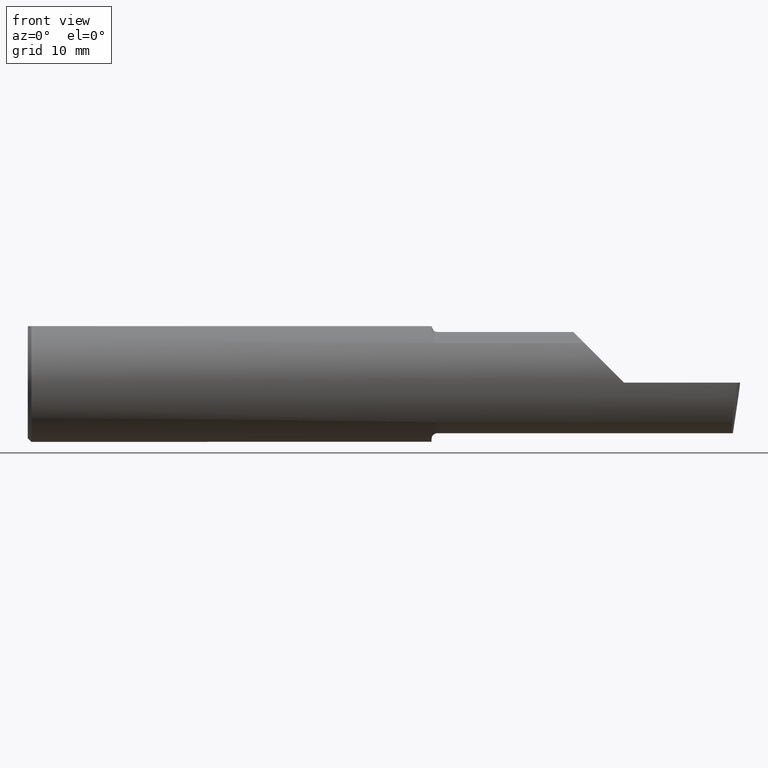
[diagram: clean part render]
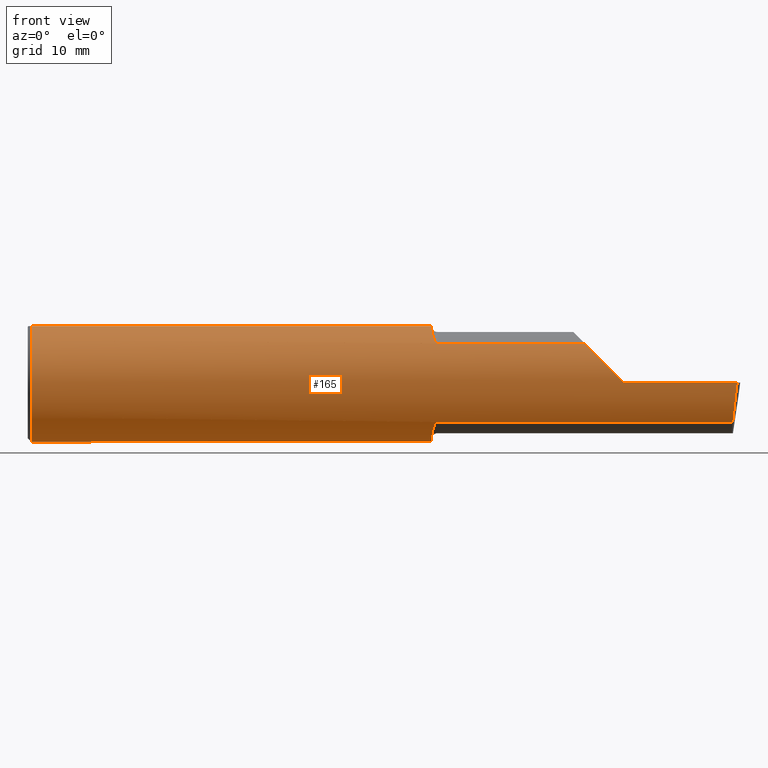
[diagram: same view with one face highlighted and labeled with its STEP entity id]
A machine part, front view. The second image highlights one B-rep face of the part: STEP entity #165.
In plain terms, the highlighted cylindrical surface (partial cylindrical patch) has radius 6.3462 mm, axis along (-1, -0, -0).
Its self-contained STEP definition (entity closure, byte-faithful):
#11 = VECTOR ( 'NONE', #103, 39.37007874015748143 ) ;
#15 = DIRECTION ( 'NONE',  ( 0.0000000000000000000, 0.0000000000000000000, -1.000000000000000000 ) ) ;
#16 = CIRCLE ( 'NONE', #126, 0.2498499999999999888 ) ;
#17 =( BOUNDED_CURVE ( )  B_SPLINE_CURVE ( 3, ( #730, #550, #720, #742 ),
 .UNSPECIFIED., .F., .T. ) 
 B_SPLINE_CURVE_WITH_KNOTS ( ( 4, 4 ),
 ( 4.712388980384689674, 5.438654041019562513 ),
 .UNSPECIFIED. ) 
 CURVE ( )  GEOMETRIC_REPRESENTATION_ITEM ( )  RATIONAL_B_SPLINE_CURVE ( ( 1.000000000000000000, 0.9565258159411007544, 0.9565258159411007544, 1.000000000000000000 ) ) 
 REPRESENTATION_ITEM ( '' )  );
#29 = EDGE_CURVE ( 'NONE', #661, #237, #760, .T. ) ;
#39 = CARTESIAN_POINT ( 'NONE',  ( 2.135000000000000231, -0.1868028301886796583, 0.1659208399614084672 ) ) ;
#53 = CARTESIAN_POINT ( 'NONE',  ( 1.720144309637440694, -0.1849788583324332991, 0.1679547276881066253 ) ) ;
#55 = CARTESIAN_POINT ( 'NONE',  ( 1.700332084145229850, -0.1014027185340450193, 0.2286231260779311159 ) ) ;
#59 = CARTESIAN_POINT ( 'NONE',  ( 0.0000000000000000000, 0.0000000000000000000, 0.0000000000000000000 ) ) ;
#60 = EDGE_CURVE ( 'NONE', #201, #189, #520, .T. ) ;
#61 = VERTEX_POINT ( 'NONE', #331 ) ;
#71 = CIRCLE ( 'NONE', #449, 0.2498499999999999888 ) ;
#77 = CARTESIAN_POINT ( 'NONE',  ( 2.968492717492763777, -0.1868028301886796583, -0.1659208399614084672 ) ) ;
#93 = DIRECTION ( 'NONE',  ( -1.000000000000000000, -0.0000000000000000000, -0.0000000000000000000 ) ) ;
#95 = CARTESIAN_POINT ( 'NONE',  ( 2.344079160038591070, -0.1868028301886809905, 0.1659208399614071905 ) ) ;
#97 = DIRECTION ( 'NONE',  ( 1.000000000000000000, 0.0000000000000000000, 0.0000000000000000000 ) ) ;
#102 = ORIENTED_EDGE ( 'NONE', *, *, #613, .T. ) ;
#103 = DIRECTION ( 'NONE',  ( 1.000000000000000000, 0.0000000000000000000, 0.0000000000000000000 ) ) ;
#108 = EDGE_CURVE ( 'NONE', #189, #754, #16, .T. ) ;
#109 = CARTESIAN_POINT ( 'NONE',  ( 2.987221270274242446, -0.2498499999999999888, -6.495017623931165518E-17 ) ) ;
#111 = EDGE_CURVE ( 'NONE', #237, #549, #17, .T. ) ;
#112 = ORIENTED_EDGE ( 'NONE', *, *, #108, .F. ) ;
#117 = CARTESIAN_POINT ( 'NONE',  ( 1.717018584423772198, -0.1817363555988616708, 0.1714722504633802991 ) ) ;
#126 = AXIS2_PLACEMENT_3D ( 'NONE', #567, #249, #677 ) ;
#131 = LINE ( 'NONE', #406, #751 ) ;
#134 = CIRCLE ( 'NONE', #462, 0.2498499999999999888 ) ;
#135 = ORIENTED_EDGE ( 'NONE', *, *, #764, .T. ) ;
#137 = CARTESIAN_POINT ( 'NONE',  ( 1.725000000000000089, -0.1868028301886795473, -0.1659208399614084672 ) ) ;
#144 = CARTESIAN_POINT ( 'NONE',  ( 1.705537042546466875, -0.1495003888704987127, -0.2004994225712674327 ) ) ;
#165 = ADVANCED_FACE ( 'NONE', ( #624 ), #756, .T. ) ;
#172 = EDGE_CURVE ( 'NONE', #61, #247, #134, .T. ) ;
#173 = DIRECTION ( 'NONE',  ( 0.0000000000000000000, 0.0000000000000000000, 1.000000000000000000 ) ) ;
#176 = CARTESIAN_POINT ( 'NONE',  ( 1.705553274544309827, -0.1495649063853951022, 0.2004446339470382088 ) ) ;
#189 = VERTEX_POINT ( 'NONE', #489 ) ;
#190 = EDGE_CURVE ( 'NONE', #563, #512, #340, .T. ) ;
#191 = DIRECTION ( 'NONE',  ( 1.000000000000000000, 0.0000000000000000000, 0.0000000000000000000 ) ) ;
#201 = VERTEX_POINT ( 'NONE', #137 ) ;
#214 = CARTESIAN_POINT ( 'NONE',  ( 1.700000000000000178, -0.08036415094339686982, 0.2365726648265747967 ) ) ;
#215 = ORIENTED_EDGE ( 'NONE', *, *, #316, .F. ) ;
#229 = LINE ( 'NONE', #438, #372 ) ;
#237 = VERTEX_POINT ( 'NONE', #456 ) ;
#240 = CARTESIAN_POINT ( 'NONE',  ( 1.722232603162240139, -0.1862758070845875191, -0.1665151405181425348 ) ) ;
#242 = CARTESIAN_POINT ( 'NONE',  ( 1.699999999999999734, -0.09104204635388213340, 0.2329453649474654275 ) ) ;
#246 = DIRECTION ( 'NONE',  ( -1.000000000000000000, -0.0000000000000000000, -0.0000000000000000000 ) ) ;
#247 = VERTEX_POINT ( 'NONE', #395 ) ;
#249 = DIRECTION ( 'NONE',  ( 1.000000000000000000, 0.0000000000000000000, 0.0000000000000000000 ) ) ;
#255 = CARTESIAN_POINT ( 'NONE',  ( 1.725000000000000089, -0.1868028301886795473, -0.1659208399614084672 ) ) ;
#258 = ORIENTED_EDGE ( 'NONE', *, *, #172, .F. ) ;
#260 = CARTESIAN_POINT ( 'NONE',  ( 1.720138573936400572, -0.1849738682364329700, -0.1679602226613252647 ) ) ;
#264 = CARTESIAN_POINT ( 'NONE',  ( 0.01499999999999999771, 0.0000000000000000000, 0.0000000000000000000 ) ) ;
#266 = CARTESIAN_POINT ( 'NONE',  ( 1.719285582744839669, -0.1841881072713809631, -0.1688230283719350799 ) ) ;
#270 = CARTESIAN_POINT ( 'NONE',  ( 1.717016733372314974, -0.1817333077058770063, -0.1714754572696064183 ) ) ;
#272 = CARTESIAN_POINT ( 'NONE',  ( 1.715875558094660080, -0.1799506819598040153, -0.1733486322212179631 ) ) ;
#277 = CARTESIAN_POINT ( 'NONE',  ( 1.712797058507745440, -0.1743943839926587747, -0.1789958554125697376 ) ) ;
#280 = DIRECTION ( 'NONE',  ( -1.000000000000000000, -0.0000000000000000000, -0.0000000000000000000 ) ) ;
#281 = CARTESIAN_POINT ( 'NONE',  ( 1.711285743882608124, -0.1704402150608116950, -0.1827701868778696948 ) ) ;
#293 = VECTOR ( 'NONE', #454, 39.37007874015748143 ) ;
#302 = CARTESIAN_POINT ( 'NONE',  ( 1.725000000000000089, -0.1868028301886794917, 0.1659208399614085228 ) ) ;
#306 = CARTESIAN_POINT ( 'NONE',  ( 1.702700302592143222, -0.1312404656039928563, 0.2128935242986063348 ) ) ;
#310 = CARTESIAN_POINT ( 'NONE',  ( 1.699999999999989964, -0.1016924291521891927, -0.2293274111511738877 ) ) ;
#316 = EDGE_CURVE ( 'NONE', #687, #563, #409, .T. ) ;
#324 = CARTESIAN_POINT ( 'NONE',  ( 1.700000000000000178, -0.08036415094339686982, -0.2365726648265747967 ) ) ;
#331 = CARTESIAN_POINT ( 'NONE',  ( 0.01499999999999999771, 0.07650098038587500870, 0.2378499999999999226 ) ) ;
#339 = CARTESIAN_POINT ( 'NONE',  ( 1.701227564404961701, -0.1217005943024296599, -0.2193523119135136756 ) ) ;
#340 = B_SPLINE_CURVE_WITH_KNOTS ( 'NONE', 3,
 ( #722, #242, #55, #662, #306, #176, #660, #546, #608, #605, #117, #423, #53, #487, #658, #302 ),
 .UNSPECIFIED., .F., .F.,
 ( 4, 2, 2, 2, 2, 2, 2, 4 ),
 ( 0.0001034694911878208126, 0.0009591263138367424335, 0.001814783136485664068, 0.002670439959134586570, 0.003098268370459050965, 0.003312182576121279910, 0.003419139678952399369, 0.003526096781783518829 ),
 .UNSPECIFIED. ) ;
#347 = VERTEX_POINT ( 'NONE', #719 ) ;
#372 = VECTOR ( 'NONE', #97, 39.37007874015748143 ) ;
#395 = CARTESIAN_POINT ( 'NONE',  ( 0.01499999999999999771, 0.0000000000000000000, -0.2498499999999999888 ) ) ;
#396 = EDGE_LOOP ( 'NONE', ( #518, #634, #627, #553, #533, #526, #215, #102, #696, #258, #135, #112, #576 ) ) ;
#400 = CARTESIAN_POINT ( 'NONE',  ( 1.707341173198634321, -0.1582250006961559707, -0.1936724403215127066 ) ) ;
#406 = CARTESIAN_POINT ( 'NONE',  ( 2.135000000000000231, -0.1868028301886796583, -0.1659208399614084672 ) ) ;
#407 = CARTESIAN_POINT ( 'NONE',  ( 1.725000000000000089, -0.1868028301886794917, 0.1659208399614085228 ) ) ;
#409 = CIRCLE ( 'NONE', #732, 0.2498499999999999888 ) ;
#423 = CARTESIAN_POINT ( 'NONE',  ( 1.719290397284158223, -0.1841927918507050010, 0.1688179232533555119 ) ) ;
#438 = CARTESIAN_POINT ( 'NONE',  ( 0.0000000000000000000, 0.07650098038587500870, 0.2378499999999999226 ) ) ;
#442 =( BOUNDED_CURVE ( )  B_SPLINE_CURVE ( 3, ( #629, #740, #479, #109 ),
 .UNSPECIFIED., .F., .T. ) 
 B_SPLINE_CURVE_WITH_KNOTS ( ( 4, 4 ),
 ( 0.6344818218798480292, 1.360746882514728195 ),
 .UNSPECIFIED. ) 
 CURVE ( )  GEOMETRIC_REPRESENTATION_ITEM ( )  RATIONAL_B_SPLINE_CURVE ( ( 1.000000000000000000, 0.9565258159410998662, 0.9565258159410998662, 1.000000000000000000 ) ) 
 REPRESENTATION_ITEM ( '' )  );
#447 = CARTESIAN_POINT ( 'NONE',  ( 1.700000000000000178, -0.07650098038590473493, 0.2378500000000000059 ) ) ;
#449 = AXIS2_PLACEMENT_3D ( 'NONE', #264, #536, #173 ) ;
#454 = DIRECTION ( 'NONE',  ( -1.000000000000000000, -0.0000000000000000000, -0.0000000000000000000 ) ) ;
#456 = CARTESIAN_POINT ( 'NONE',  ( 2.510000000000000231, -0.2498499999999999610, 6.000769315822035917E-17 ) ) ;
#462 = AXIS2_PLACEMENT_3D ( 'NONE', #611, #246, #548 ) ;
#463 = CARTESIAN_POINT ( 'NONE',  ( 0.0000000000000000000, -0.07650098038587496707, 0.2378499999999999226 ) ) ;
#464 = CARTESIAN_POINT ( 'NONE',  ( 1.878049121262586821E-31, -0.2498499999999999610, 7.172378389328440442E-16 ) ) ;
#479 = CARTESIAN_POINT ( 'NONE',  ( 2.979623920331826881, -0.2498500000000000443, -0.06185424669427484756 ) ) ;
#482 = EDGE_CURVE ( 'NONE', #512, #549, #496, .T. ) ;
#487 = CARTESIAN_POINT ( 'NONE',  ( 1.722243150415551316, -0.1862809296394747349, 0.1665094106511987027 ) ) ;
#489 = CARTESIAN_POINT ( 'NONE',  ( 1.700000000000000178, -0.08036415094339686982, -0.2365726648265747967 ) ) ;
#490 = DIRECTION ( 'NONE',  ( -1.000000000000000000, -0.0000000000000000000, -0.0000000000000000000 ) ) ;
#496 = LINE ( 'NONE', #39, #11 ) ;
#497 = AXIS2_PLACEMENT_3D ( 'NONE', #59, #490, #551 ) ;
#512 = VERTEX_POINT ( 'NONE', #407 ) ;
#518 = ORIENTED_EDGE ( 'NONE', *, *, #578, .F. ) ;
#520 = B_SPLINE_CURVE_WITH_KNOTS ( 'NONE', 3,
 ( #255, #564, #240, #260, #266, #270, #272, #277, #281, #400, #144, #339, #310, #324 ),
 .UNSPECIFIED., .F., .F.,
 ( 4, 2, 2, 2, 2, 2, 4 ),
 ( 1.967619685288262155E-07, 0.0001090840123078037032, 0.0002179712626470785828, 0.0004357457633256140578, 0.0008712947646826851161, 0.001742392767396818776, 0.003484588772825088915 ),
 .UNSPECIFIED. ) ;
#526 = ORIENTED_EDGE ( 'NONE', *, *, #190, .F. ) ;
#533 = ORIENTED_EDGE ( 'NONE', *, *, #482, .F. ) ;
#536 = DIRECTION ( 'NONE',  ( -1.000000000000000000, -0.0000000000000000000, -0.0000000000000000000 ) ) ;
#546 = CARTESIAN_POINT ( 'NONE',  ( 1.711268146151110114, -0.1703904609315281815, 0.1828159088808244404 ) ) ;
#548 = DIRECTION ( 'NONE',  ( 0.0000000000000000000, 0.0000000000000000000, 1.000000000000000000 ) ) ;
#549 = VERTEX_POINT ( 'NONE', #95 ) ;
#550 = CARTESIAN_POINT ( 'NONE',  ( 2.448145753305725592, -0.2498499999999999610, 0.06185424669427411204 ) ) ;
#551 = DIRECTION ( 'NONE',  ( 0.0000000000000000000, 0.0000000000000000000, 1.000000000000000000 ) ) ;
#553 = ORIENTED_EDGE ( 'NONE', *, *, #111, .T. ) ;
#563 = VERTEX_POINT ( 'NONE', #214 ) ;
#564 = CARTESIAN_POINT ( 'NONE',  ( 1.723547768521293877, -0.1868028301886795195, -0.1659208399614086338 ) ) ;
#567 = CARTESIAN_POINT ( 'NONE',  ( 1.700000000000000178, 0.0000000000000000000, 0.0000000000000000000 ) ) ;
#576 = ORIENTED_EDGE ( 'NONE', *, *, #60, .F. ) ;
#578 = EDGE_CURVE ( 'NONE', #676, #201, #131, .T. ) ;
#584 = VECTOR ( 'NONE', #280, 39.37007874015748143 ) ;
#603 = LINE ( 'NONE', #463, #584 ) ;
#605 = CARTESIAN_POINT ( 'NONE',  ( 1.715857071685141122, -0.1799228808997980489, 0.1733778622677448200 ) ) ;
#608 = CARTESIAN_POINT ( 'NONE',  ( 1.712758562425230391, -0.1743135686468868795, 0.1790760091940040988 ) ) ;
#611 = CARTESIAN_POINT ( 'NONE',  ( 0.01499999999999999771, 0.0000000000000000000, 0.0000000000000000000 ) ) ;
#613 = EDGE_CURVE ( 'NONE', #687, #347, #603, .T. ) ;
#620 = CARTESIAN_POINT ( 'NONE',  ( 1.700000000000000178, 0.07650098038587503646, 0.2378500000000000059 ) ) ;
#621 = CARTESIAN_POINT ( 'NONE',  ( 1.700000000000000178, 0.0000000000000000000, 0.0000000000000000000 ) ) ;
#624 = FACE_OUTER_BOUND ( 'NONE', #396, .T. ) ;
#627 = ORIENTED_EDGE ( 'NONE', *, *, #29, .T. ) ;
#629 = CARTESIAN_POINT ( 'NONE',  ( 2.968492717492763777, -0.1868028301886796583, -0.1659208399614084672 ) ) ;
#634 = ORIENTED_EDGE ( 'NONE', *, *, #692, .T. ) ;
#658 = CARTESIAN_POINT ( 'NONE',  ( 1.723548866468135543, -0.1868028301907317945, 0.1659208399590979544 ) ) ;
#660 = CARTESIAN_POINT ( 'NONE',  ( 1.707343635746627397, -0.1582230848692698921, 0.1936715022401948594 ) ) ;
#661 = VERTEX_POINT ( 'NONE', #684 ) ;
#662 = CARTESIAN_POINT ( 'NONE',  ( 1.701680550596499364, -0.1214972057705732966, 0.2186080375779521356 ) ) ;
#676 = VERTEX_POINT ( 'NONE', #77 ) ;
#677 = DIRECTION ( 'NONE',  ( 0.0000000000000000000, 0.0000000000000000000, -1.000000000000000000 ) ) ;
#684 = CARTESIAN_POINT ( 'NONE',  ( 2.987221270274242446, -0.2498499999999999888, -6.495017623931165518E-17 ) ) ;
#687 = VERTEX_POINT ( 'NONE', #447 ) ;
#688 = EDGE_CURVE ( 'NONE', #247, #347, #71, .T. ) ;
#692 = EDGE_CURVE ( 'NONE', #676, #661, #442, .T. ) ;
#696 = ORIENTED_EDGE ( 'NONE', *, *, #688, .F. ) ;
#719 = CARTESIAN_POINT ( 'NONE',  ( 0.01499999999998188026, -0.07650098038590467941, 0.2378500000000000059 ) ) ;
#720 = CARTESIAN_POINT ( 'NONE',  ( 2.390325100969867833, -0.2278791102234780097, 0.1196748990301311349 ) ) ;
#722 = CARTESIAN_POINT ( 'NONE',  ( 1.700000000000000178, -0.08036415094339686982, 0.2365726648265747967 ) ) ;
#730 = CARTESIAN_POINT ( 'NONE',  ( 2.510000000000000231, -0.2498499999999999610, 6.000769315822035917E-17 ) ) ;
#732 = AXIS2_PLACEMENT_3D ( 'NONE', #621, #191, #15 ) ;
#740 = CARTESIAN_POINT ( 'NONE',  ( 2.973097331270540877, -0.2278791102234775934, -0.1196748990301323978 ) ) ;
#742 = CARTESIAN_POINT ( 'NONE',  ( 2.344079160038591070, -0.1868028301886809905, 0.1659208399614071905 ) ) ;
#751 = VECTOR ( 'NONE', #93, 39.37007874015748143 ) ;
#754 = VERTEX_POINT ( 'NONE', #620 ) ;
#756 = CYLINDRICAL_SURFACE ( 'NONE', #497, 0.2498499999999999888 ) ;
#760 = LINE ( 'NONE', #464, #293 ) ;
#764 = EDGE_CURVE ( 'NONE', #61, #754, #229, .T. ) ;